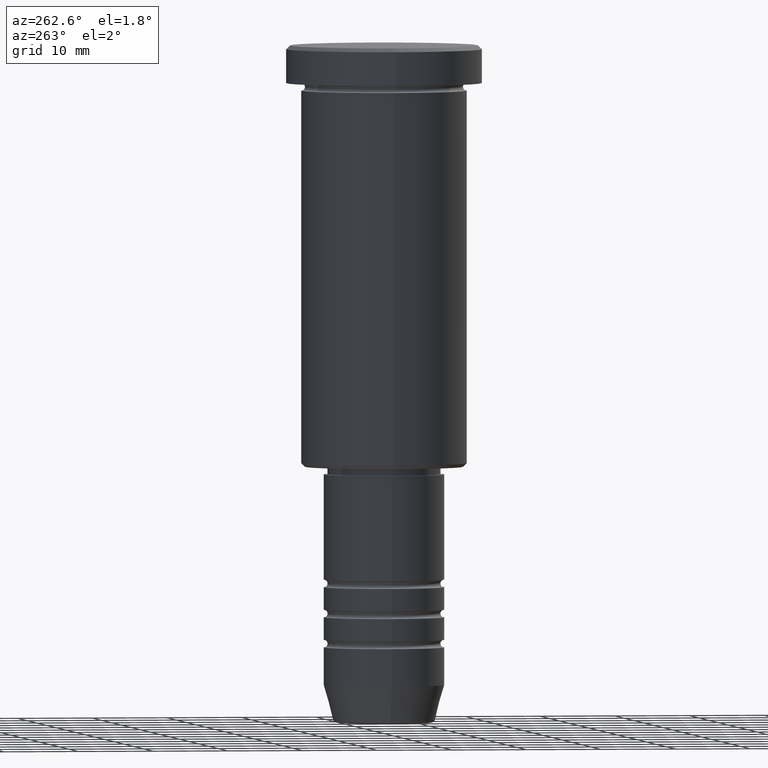
[diagram: clean part render]
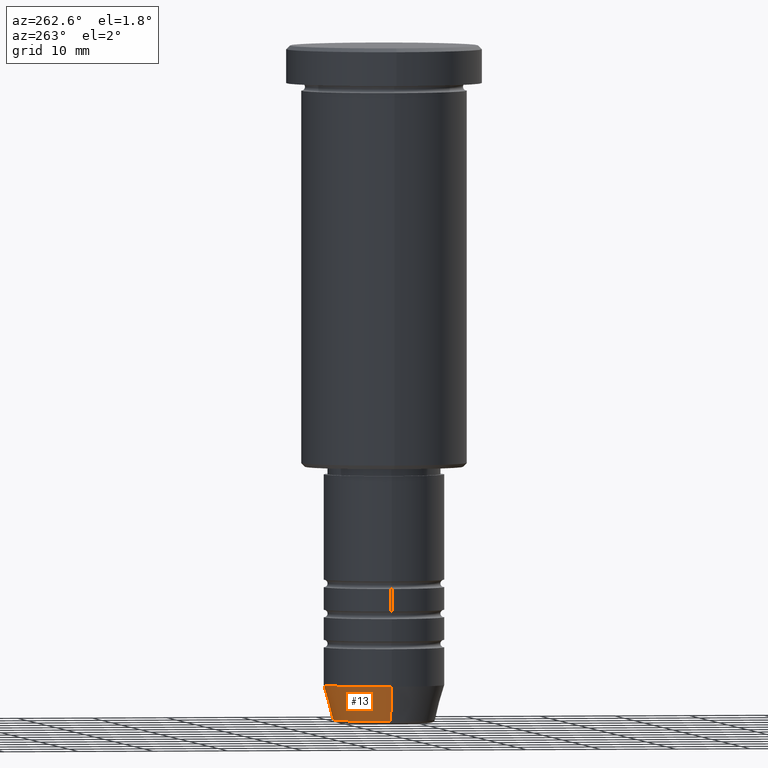
[diagram: same view with one face highlighted and labeled with its STEP entity id]
A machine part, auxiliary view. The second image highlights one B-rep face of the part: STEP entity #13.
In plain terms, the highlighted conical surface has half-angle 15 deg.
Its self-contained STEP definition (entity closure, byte-faithful):
#13 = ADVANCED_FACE ( 'NONE', ( #705 ), #58, .T. ) ;
#58 = CONICAL_SURFACE ( 'NONE', #1066, 8.000000000000000000, 0.2617993877991502405 ) ;
#95 = VERTEX_POINT ( 'NONE', #702 ) ;
#99 = CARTESIAN_POINT ( 'NONE',  ( 6.759553456999436882, 0.000000000000000000, -89.62940952255125637 ) ) ;
#106 = CARTESIAN_POINT ( 'NONE',  ( 8.000000000000000000, 0.000000000000000000, -84.99999999999998579 ) ) ;
#142 = VERTEX_POINT ( 'NONE', #163 ) ;
#163 = CARTESIAN_POINT ( 'NONE',  ( -6.759553456999437770, 9.037619948979306213E-16, -89.62940952255125637 ) ) ;
#171 = AXIS2_PLACEMENT_3D ( 'NONE', #874, #387, #574 ) ;
#178 = DIRECTION ( 'NONE',  ( -0.2588190451025214611, 3.169619151431774186E-17, 0.9659258262890679791 ) ) ;
#179 = EDGE_CURVE ( 'NONE', #540, #142, #1027, .T. ) ;
#212 = CIRCLE ( 'NONE', #344, 8.000000000000000000 ) ;
#274 = ORIENTED_EDGE ( 'NONE', *, *, #179, .T. ) ;
#344 = AXIS2_PLACEMENT_3D ( 'NONE', #511, #589, #700 ) ;
#373 = CARTESIAN_POINT ( 'NONE',  ( 8.000000000000000000, 0.000000000000000000, -84.99999999999998579 ) ) ;
#381 = VECTOR ( 'NONE', #178, 1000.000000000000114 ) ;
#387 = DIRECTION ( 'NONE',  ( -0.000000000000000000, -0.000000000000000000, 1.000000000000000000 ) ) ;
#451 = ORIENTED_EDGE ( 'NONE', *, *, #961, .T. ) ;
#476 = DIRECTION ( 'NONE',  ( 0.2588190451025214611, 0.000000000000000000, 0.9659258262890679791 ) ) ;
#511 = CARTESIAN_POINT ( 'NONE',  ( 0.000000000000000000, 0.000000000000000000, -84.99999999999998579 ) ) ;
#540 = VERTEX_POINT ( 'NONE', #99 ) ;
#542 = CARTESIAN_POINT ( 'NONE',  ( 0.000000000000000000, 0.000000000000000000, -84.99999999999998579 ) ) ;
#574 = DIRECTION ( 'NONE',  ( 1.000000000000000000, 0.000000000000000000, 0.000000000000000000 ) ) ;
#589 = DIRECTION ( 'NONE',  ( -0.000000000000000000, -0.000000000000000000, 1.000000000000000000 ) ) ;
#604 = EDGE_LOOP ( 'NONE', ( #274, #451, #854, #1099 ) ) ;
#614 = VECTOR ( 'NONE', #476, 1000.000000000000114 ) ;
#635 = DIRECTION ( 'NONE',  ( 1.000000000000000000, 0.000000000000000000, 0.000000000000000000 ) ) ;
#647 = VERTEX_POINT ( 'NONE', #373 ) ;
#700 = DIRECTION ( 'NONE',  ( 1.000000000000000000, 0.000000000000000000, 0.000000000000000000 ) ) ;
#702 = CARTESIAN_POINT ( 'NONE',  ( -8.000000000000000000, 9.797174393178825657E-16, -84.99999999999998579 ) ) ;
#705 = FACE_OUTER_BOUND ( 'NONE', #604, .T. ) ;
#745 = EDGE_CURVE ( 'NONE', #540, #647, #925, .T. ) ;
#854 = ORIENTED_EDGE ( 'NONE', *, *, #885, .F. ) ;
#874 = CARTESIAN_POINT ( 'NONE',  ( 0.000000000000000000, 0.000000000000000000, -89.62940952255125637 ) ) ;
#885 = EDGE_CURVE ( 'NONE', #647, #95, #212, .T. ) ;
#925 = LINE ( 'NONE', #106, #614 ) ;
#961 = EDGE_CURVE ( 'NONE', #142, #95, #998, .T. ) ;
#969 = DIRECTION ( 'NONE',  ( -0.000000000000000000, -0.000000000000000000, 1.000000000000000000 ) ) ;
#989 = CARTESIAN_POINT ( 'NONE',  ( -8.000000000000000000, 9.797174393178825657E-16, -84.99999999999998579 ) ) ;
#998 = LINE ( 'NONE', #989, #381 ) ;
#1027 = CIRCLE ( 'NONE', #171, 6.759553456999436882 ) ;
#1066 = AXIS2_PLACEMENT_3D ( 'NONE', #542, #969, #635 ) ;
#1099 = ORIENTED_EDGE ( 'NONE', *, *, #745, .F. ) ;